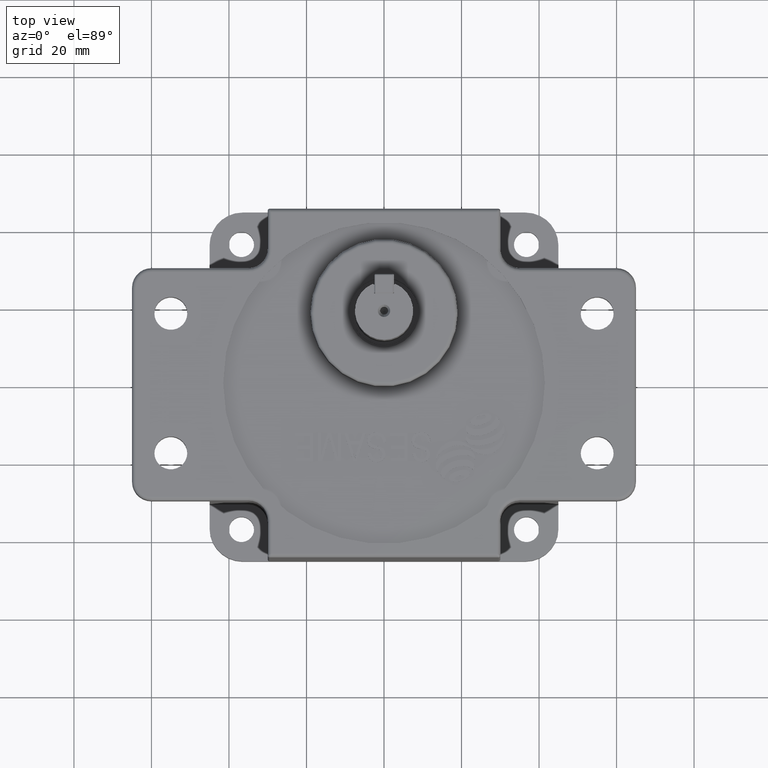
[diagram: clean part render]
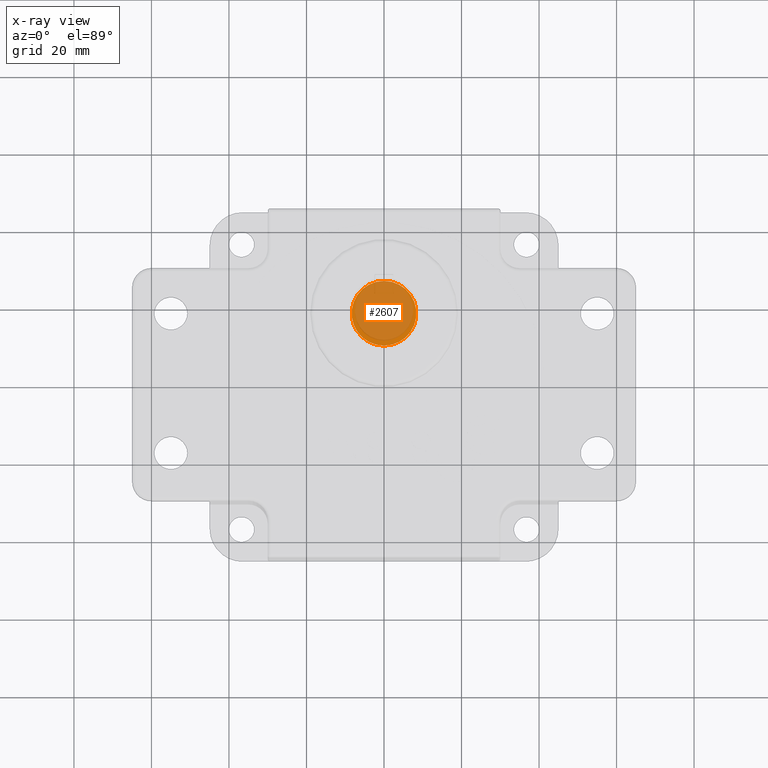
[diagram: x-ray — body ghosted, one internal face saturated and labeled with its STEP entity id]
A machine part, top view, then the same camera in x-ray: the body is ghosted and one INTERNAL B-rep face — a face not visible from any outside direction — is saturated and labeled: STEP entity #2607.
In plain terms, the highlighted planar face has unit normal (0, 0, 1).
Its self-contained STEP definition (entity closure, byte-faithful):
#2384 = EDGE_CURVE ( 'NONE', #2409, #2405, #8151, .T. ) ;
#2405 = VERTEX_POINT ( 'NONE', #8221 ) ;
#2409 = VERTEX_POINT ( 'NONE', #8218 ) ;
#2516 = EDGE_CURVE ( 'NONE', #2405, #2409, #8454, .T. ) ;
#2566 = EDGE_LOOP ( 'NONE', ( #2616, #2598 ) ) ;
#2598 = ORIENTED_EDGE ( 'NONE', *, *, #2384, .F. ) ;
#2607 = ADVANCED_FACE ( 'NONE', ( #8569 ), #8621, .F. ) ;
#2616 = ORIENTED_EDGE ( 'NONE', *, *, #2516, .F. ) ;
#8141 = DIRECTION ( 'NONE',  ( 1.000000000000000000, 0.0000000000000000000, 0.0000000000000000000 ) ) ;
#8148 = AXIS2_PLACEMENT_3D ( 'NONE', #8152, #8141, #8203 ) ;
#8151 = CIRCLE ( 'NONE', #8148, 8.349999999999999600 ) ;
#8152 = CARTESIAN_POINT ( 'NONE',  ( 59.60000000000000100, 0.0000000000000000000, 0.0000000000000000000 ) ) ;
#8203 = DIRECTION ( 'NONE',  ( 0.0000000000000000000, 0.0000000000000000000, -1.000000000000000000 ) ) ;
#8218 = CARTESIAN_POINT ( 'NONE',  ( 59.60000000000000100, 1.022580077288039900E-015, -8.349999999999999600 ) ) ;
#8221 = CARTESIAN_POINT ( 'NONE',  ( 59.60000000000000100, 0.0000000000000000000, 8.349999999999999600 ) ) ;
#8439 = DIRECTION ( 'NONE',  ( 0.0000000000000000000, 0.0000000000000000000, -1.000000000000000000 ) ) ;
#8440 = DIRECTION ( 'NONE',  ( 1.000000000000000000, 0.0000000000000000000, 0.0000000000000000000 ) ) ;
#8441 = CARTESIAN_POINT ( 'NONE',  ( 59.60000000000000100, 0.0000000000000000000, 0.0000000000000000000 ) ) ;
#8442 = AXIS2_PLACEMENT_3D ( 'NONE', #8441, #8440, #8439 ) ;
#8454 = CIRCLE ( 'NONE', #8442, 8.349999999999999600 ) ;
#8569 = FACE_OUTER_BOUND ( 'NONE', #2566, .T. ) ;
#8621 = PLANE ( 'NONE',  #8634 ) ;
#8631 = DIRECTION ( 'NONE',  ( 0.0000000000000000000, 0.0000000000000000000, -1.000000000000000000 ) ) ;
#8632 = DIRECTION ( 'NONE',  ( 1.000000000000000000, 0.0000000000000000000, 0.0000000000000000000 ) ) ;
#8633 = CARTESIAN_POINT ( 'NONE',  ( 59.60000000000000100, 0.0000000000000000000, 0.0000000000000000000 ) ) ;
#8634 = AXIS2_PLACEMENT_3D ( 'NONE', #8633, #8632, #8631 ) ;